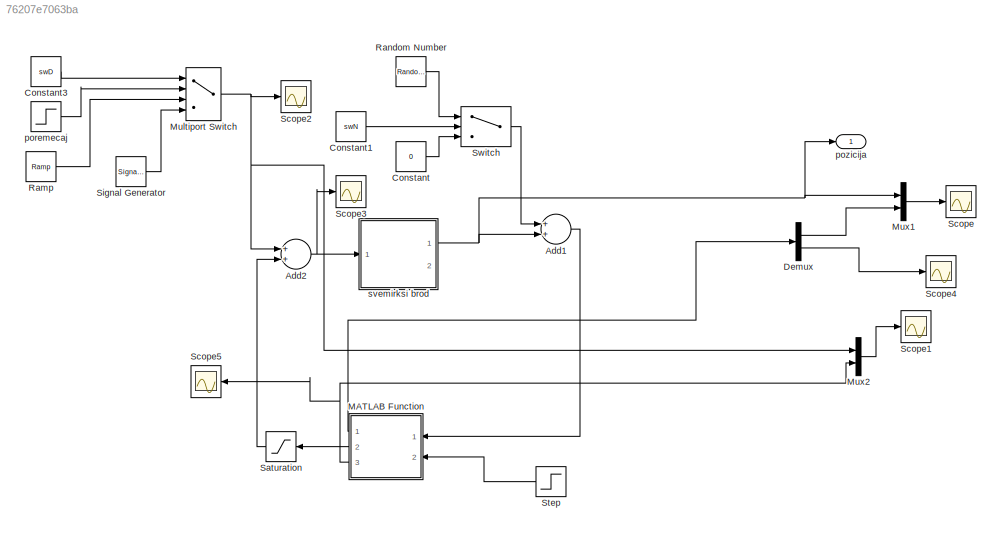
MODEL slx_76207e7063ba
KIND model
CONFIG AbsTol = auto
CONFIG EnableMultiTasking = on
CONFIG FixedStep = 0.001
CONFIG MaxStep = auto
CONFIG MinStep = auto
CONFIG RelTol = 1e-3
CONFIG SampleTimeConstraint = Unconstrained
CONFIG Solver = VariableStepAuto
CONFIG SolverName = VariableStepAuto
CONFIG StartTime = 0.0
CONFIG StopTime = 30.0
BLOCK [Sum] Add1
  InputSameDT = off
  OutDataTypeStr = Inherit: Inherit via internal rule
  Ports = [2, 1]
  SaturateOnIntegerOverflow = off
BLOCK [Sum] Add2
  InputSameDT = off
  OutDataTypeStr = Inherit: Inherit via internal rule
  Ports = [2, 1]
  SaturateOnIntegerOverflow = off
BLOCK [Constant] Constant
  Value = 0
BLOCK [Constant] Constant1
  Value = swN
BLOCK [Constant] Constant3
  Value = swD
BLOCK [Demux] Demux
  DisplayOption = bar
  Outputs = 2
  Ports = [1, 2]
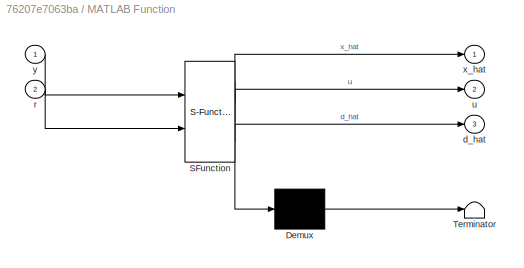
BLOCK [SubSystem] MATLAB Function
  ErrorFcn = Stateflow.Translate.translate
  PermitHierarchicalResolution = ExplicitOnly
  Ports = [2, 3]
  RequestExecContextInheritance = off
  SFBlockType = MATLAB Function
  TreatAsAtomicUnit = on
BLOCK [Demux] MATLAB Function/ Demux 
  Outputs = 1
  Ports = [1, 1]
BLOCK [S-Function] MATLAB Function/ SFunction 
  EnableBusSupport = on
  FunctionName = sf_sfun
  Parameters = A,Aw,B,C,Cw,L,Lw,T,k,kr
  PortCounts = [2 4]
  Ports = [2, 4]
  SFcnIsStateOwnerBlock = off
  SFunctionDeploymentMode = off
  Tag = Stateflow S-Function homework4_1 2
BLOCK [Terminator] MATLAB Function/ Terminator 
BLOCK [Outport] MATLAB Function/d_hat
  IconDisplay = Port number
  Port = 3
BLOCK [Inport] MATLAB Function/r
  IconDisplay = Port number
  Port = 2
BLOCK [Outport] MATLAB Function/u
  IconDisplay = Port number
  Port = 2
BLOCK [Outport] MATLAB Function/x_hat
  IconDisplay = Port number
BLOCK [Inport] MATLAB Function/y
  IconDisplay = Port number
BLOCK [MultiPortSwitch] Multiport Switch
  InputSameDT = off
  Ports = [4, 1]
  SaturateOnIntegerOverflow = off
BLOCK [Mux] Mux1
  DisplayOption = bar
  Inputs = 2
  Ports = [2, 1]
BLOCK [Mux] Mux2
  DisplayOption = bar
  Inputs = 2
  Ports = [2, 1]
BLOCK [Reference] Ramp  REF=simulink/Sources/Ramp
  Ports = [0, 1]
  SourceBlock = simulink/Sources/Ramp
  SourceProductBaseCode = SL
  SourceProductName = Simulink
  SourceType = Ramp
BLOCK [RandomNumber] Random Number
  Variance = 0.01
BLOCK [Saturate] Saturation
  InputPortMap = u0
  LowerLimit = -1
  Ports = [1, 1]
  UpperLimit = 1
BLOCK [Scope] Scope
  Floating = off
  NumInputPorts = 1
  Ports = [1]
  ScopeSpecificationString = Simulink.scopes.TimeScopeBlockCfg('CurrentConfiguration', extmgr.ConfigurationSet(extmgr.Configuration('Core','General UI',true),extmgr.Configuration('Core','Source UI',true),extmgr.Configuration('Sources','WiredSimulink',true),extmgr.Configuration('Visuals','Time Domain',true,'SerializedDisplays',{struct('MinYLimReal','-13.22485','MaxYLimReal','119.02366','YLabelReal','','MinYLimMag','0.00000','M...<+1404ch>
BLOCK [Scope] Scope1
  Floating = off
  NumInputPorts = 1
  Ports = [1]
  ScopeSpecificationString = Simulink.scopes.TimeScopeBlockCfg('CurrentConfiguration', extmgr.ConfigurationSet(extmgr.Configuration('Core','General UI',true),extmgr.Configuration('Core','Source UI',true),extmgr.Configuration('Sources','WiredSimulink',true,'DataLoggingVariableName','ScopeData1'),extmgr.Configuration('Visuals','Time Domain',true,'SerializedDisplays',{struct('MinYLimReal','-0.37523','MaxYLimReal','3.37704','YLab...<+1447ch>
BLOCK [Scope] Scope2
  Floating = off
  NumInputPorts = 1
  Ports = [1]
  ScopeSpecificationString = Simulink.scopes.TimeScopeBlockCfg('CurrentConfiguration', extmgr.ConfigurationSet(extmgr.Configuration('Core','General UI',true),extmgr.Configuration('Core','Source UI',true),extmgr.Configuration('Sources','WiredSimulink',true,'DataLoggingVariableName','ScopeData2'),extmgr.Configuration('Visuals','Time Domain',true,'SerializedDisplays',{struct('MinYLimReal','-2.5','MaxYLimReal','2.5','YLabelReal',...<+1380ch>
BLOCK [Scope] Scope3
  Floating = off
  NumInputPorts = 1
  Ports = [1]
  ScopeSpecificationString = Simulink.scopes.TimeScopeBlockCfg('CurrentConfiguration', extmgr.ConfigurationSet(extmgr.Configuration('Core','General UI',true),extmgr.Configuration('Core','Source UI',true),extmgr.Configuration('Sources','WiredSimulink',true,'DataLoggingVariableName','ScopeData3'),extmgr.Configuration('Visuals','Time Domain',true,'SerializedDisplays',{struct('MinYLimReal','-0.04033','MaxYLimReal','0.0639','YLabe...<+1388ch>
BLOCK [Scope] Scope4
  Floating = off
  NumInputPorts = 1
  Ports = [1]
  ScopeSpecificationString = Simulink.scopes.TimeScopeBlockCfg('CurrentConfiguration', extmgr.ConfigurationSet(extmgr.Configuration('Core','General UI',true),extmgr.Configuration('Core','Source UI',true),extmgr.Configuration('Sources','WiredSimulink',true,'DataLoggingVariableName','ScopeData1'),extmgr.Configuration('Visuals','Time Domain',true,'SerializedDisplays',{struct('MinYLimReal','-6.97309','MaxYLimReal','41.70109','YLa...<+1399ch>
BLOCK [Scope] Scope5
  Floating = off
  NumInputPorts = 1
  Ports = [1]
  ScopeSpecificationString = Simulink.scopes.TimeScopeBlockCfg('CurrentConfiguration', extmgr.ConfigurationSet(extmgr.Configuration('Core','General UI',true),extmgr.Configuration('Core','Source UI',true),extmgr.Configuration('Sources','WiredSimulink',true,'DataLoggingVariableName','ScopeData2'),extmgr.Configuration('Visuals','Time Domain',true,'SerializedDisplays',{struct('MinYLimReal','-0.01252','MaxYLimReal','0.11267','YLab...<+1428ch>
BLOCK [SignalGenerator] Signal Generator
  Amplitude = 2
  Frequency = omega
  Ports = [0, 1]
  Units = rad/sec
BLOCK [Step] Step
  After = 100
  SampleTime = 0
BLOCK [Switch] Switch
  Criteria = u2 > Threshold
  InputSameDT = off
  SaturateOnIntegerOverflow = off
  Threshold = 0.5
BLOCK [Step] poremecaj
  After = 0.1
  SampleTime = 0
  Time = 20
BLOCK [Outport] pozicija
  IconDisplay = Port number
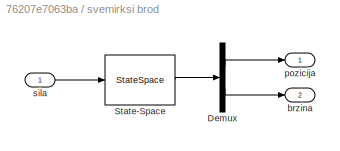
BLOCK [SubSystem] svemirksi brod
  Ports = [1, 2]
  RequestExecContextInheritance = off
BLOCK [Demux] svemirksi brod/Demux
  DisplayOption = bar
  Outputs = 2
  Ports = [1, 2]
BLOCK [StateSpace] svemirksi brod/State-Space
  A = [0 1;0 -b/m]
  B = [0;1/m]
  C = [1 0; 0 1]
  D = [0;0]
  InitialCondition = [0;0]
  Ports = [1, 1]
BLOCK [Outport] svemirksi brod/brzina
  IconDisplay = Port number
  Port = 2
BLOCK [Outport] svemirksi brod/pozicija
  IconDisplay = Port number
BLOCK [Inport] svemirksi brod/sila
  IconDisplay = Port number
LINE Add1:1 -> MATLAB Function:1
NET Add2:1 -> Scope3:1, svemirksi brod:1
LINE Constant1:1 -> Switch:2
LINE Constant3:1 -> Multiport Switch:1
LINE Constant:1 -> Switch:3
LINE Demux:1 -> Mux1:2
LINE Demux:2 -> Scope4:1
LINE MATLAB Function:1 -> Demux:1
LINE MATLAB Function:2 -> Saturation:1
NET MATLAB Function:3 -> Mux2:2, Scope5:1
NET Multiport Switch:1 -> Add2:1, Mux2:1, Scope2:1
LINE Mux1:1 -> Scope:1
LINE Mux2:1 -> Scope1:1
LINE Ramp:1 -> Multiport Switch:3
LINE Random Number:1 -> Switch:1
LINE Saturation:1 -> Add2:2
LINE Signal Generator:1 -> Multiport Switch:4
LINE Step:1 -> MATLAB Function:2
LINE Switch:1 -> Add1:1
LINE poremecaj:1 -> Multiport Switch:2
LINE svemirksi brod/Demux:1 -> svemirksi brod/pozicija:1
LINE svemirksi brod/Demux:2 -> svemirksi brod/brzina:1
LINE svemirksi brod/State-Space:1 -> svemirksi brod/Demux:1
LINE svemirksi brod/sila:1 -> svemirksi brod/State-Space:1
NET svemirksi brod:1 -> Add1:2, Mux1:1, pozicija:1
note: NET lines group one-source signal fan-out (src -> all destinations, sorted); 1:1 wires keep LINE
CHART MATLAB Function states=1 transitions=1
  STATE_LABEL 'eML_blk_kernel()'
  STATE_LABEL 'SCRIPT:\nfunction [x_hat,u,d_hat] = fcn(y,r,C, Aw, Lw, Cw, T, A, B, L, kr, k)\n\npersistent  x_hat_p;\npersistent w_hat_p;\nif isempty(x_hat_p) || isempty(w_hat_p)\n    x_hat_p=[0;0];\n    w_hat_p=0;\nend\nd_hat=Cw*w_hat_p;\nu=-k*x_hat_p+kr*r-d_hat;\nif u>1\n    u=1;\nelseif u<-1\n    u=-1;\nend\n\nx_hat=x_hat_p+T*(A*x_hat_p+B*(u+d_hat)+L*(y-C*x_hat_p));\nw_hat_p=w_hat_p+T*(Aw*w_hat_p+Lw*(y-C*x_hat_p));\nx_hat_p=x_h...<+10ch>'
